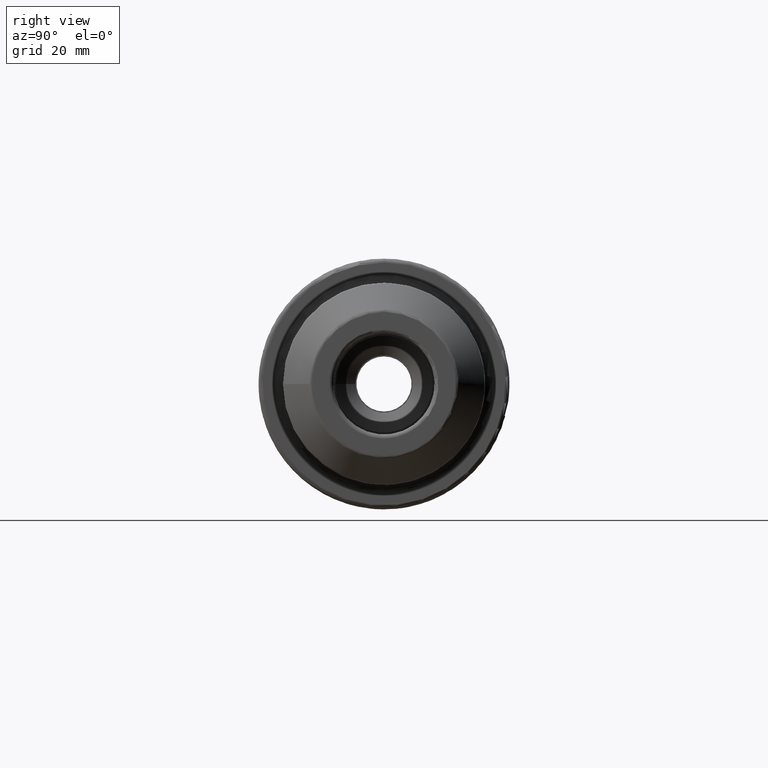
[diagram: clean part render]
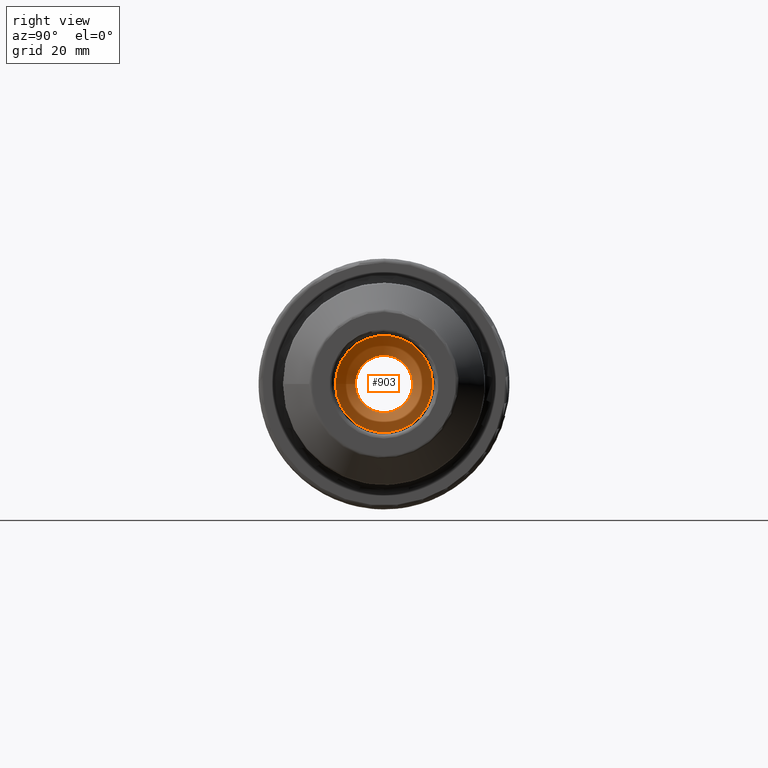
[diagram: same view with one face highlighted and labeled with its STEP entity id]
A machine part, right view. The second image highlights one B-rep face of the part: STEP entity #903.
In plain terms, the highlighted conical surface has half-angle 60 deg.
Its self-contained STEP definition (entity closure, byte-faithful):
#22=CONICAL_SURFACE('',#1000,9.69978465927431,1.0471975511966);
#60=LINE('',#1906,#107);
#107=VECTOR('',#1160,9.69978465927431);
#207=FACE_OUTER_BOUND('',#269,.T.);
#269=EDGE_LOOP('',(#673,#674,#675,#676));
#335=CIRCLE('',#999,12.2);
#336=CIRCLE('',#1001,7.19956931854865);
#402=VERTEX_POINT('',#1902);
#403=VERTEX_POINT('',#1905);
#503=EDGE_CURVE('',#402,#402,#335,.T.);
#504=EDGE_CURVE('',#402,#403,#60,.T.);
#505=EDGE_CURVE('',#403,#403,#336,.T.);
#673=ORIENTED_EDGE('',*,*,#503,.F.);
#674=ORIENTED_EDGE('',*,*,#504,.T.);
#675=ORIENTED_EDGE('',*,*,#505,.T.);
#676=ORIENTED_EDGE('',*,*,#504,.F.);
#903=ADVANCED_FACE('',(#207),#22,.F.);
#999=AXIS2_PLACEMENT_3D('',#1903,#1156,#1157);
#1000=AXIS2_PLACEMENT_3D('',#1904,#1158,#1159);
#1001=AXIS2_PLACEMENT_3D('',#1907,#1161,#1162);
#1156=DIRECTION('center_axis',(-1.,0.,0.));
#1157=DIRECTION('ref_axis',(0.,0.,1.));
#1158=DIRECTION('center_axis',(1.,0.,0.));
#1159=DIRECTION('ref_axis',(0.,1.,0.));
#1160=DIRECTION('',(-0.5,0.866025403784439,-1.06057523872491E-16));
#1161=DIRECTION('center_axis',(-1.,0.,0.));
#1162=DIRECTION('ref_axis',(0.,0.,1.));
#1902=CARTESIAN_POINT('',(-16.51,-12.2,1.49406909495977E-15));
#1903=CARTESIAN_POINT('Origin',(-16.51,0.,0.));
#1904=CARTESIAN_POINT('Origin',(-17.9535,0.,0.));
#1905=CARTESIAN_POINT('',(-19.397,-7.19956931854865,8.81692952120009E-16));
#1906=CARTESIAN_POINT('',(-17.9535,-9.69978465927431,1.18788102353989E-15));
#1907=CARTESIAN_POINT('Origin',(-19.397,0.,0.));